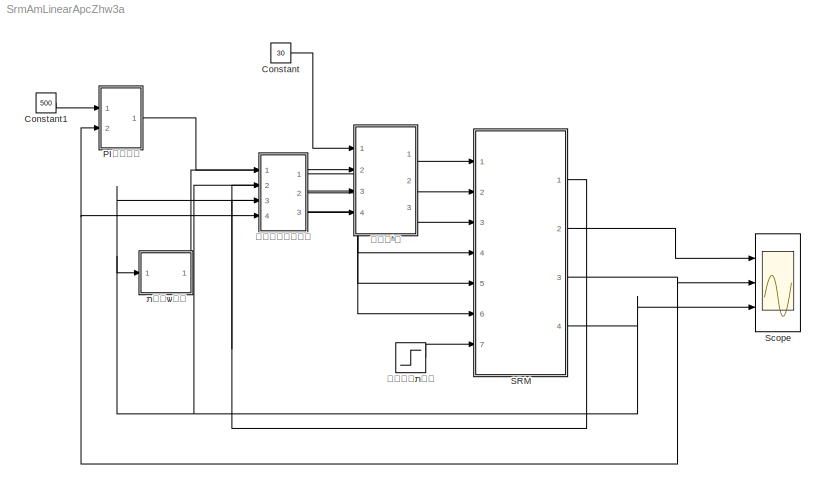
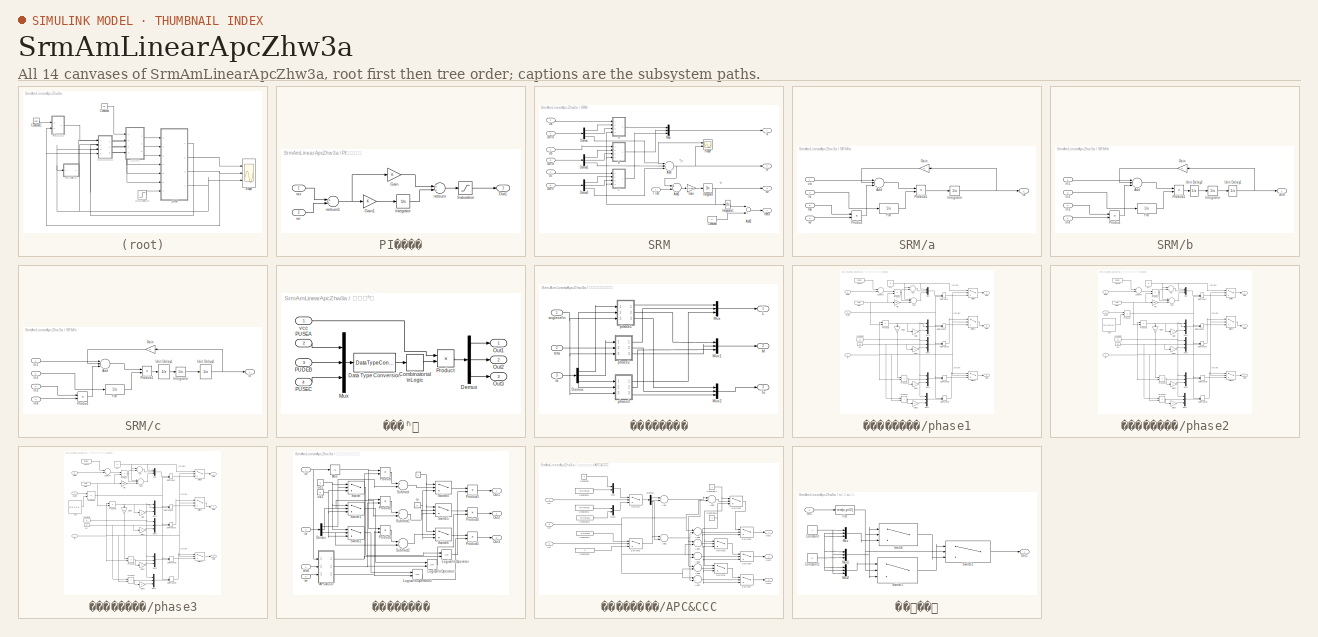
[diagram: thumbnail index - all 14 canvases of the model, root first then tree order]
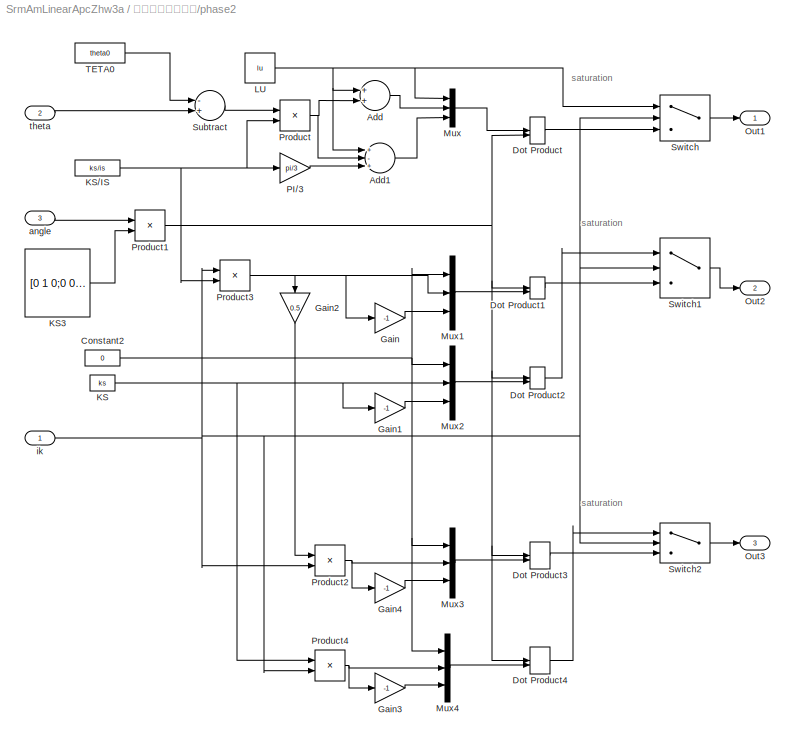
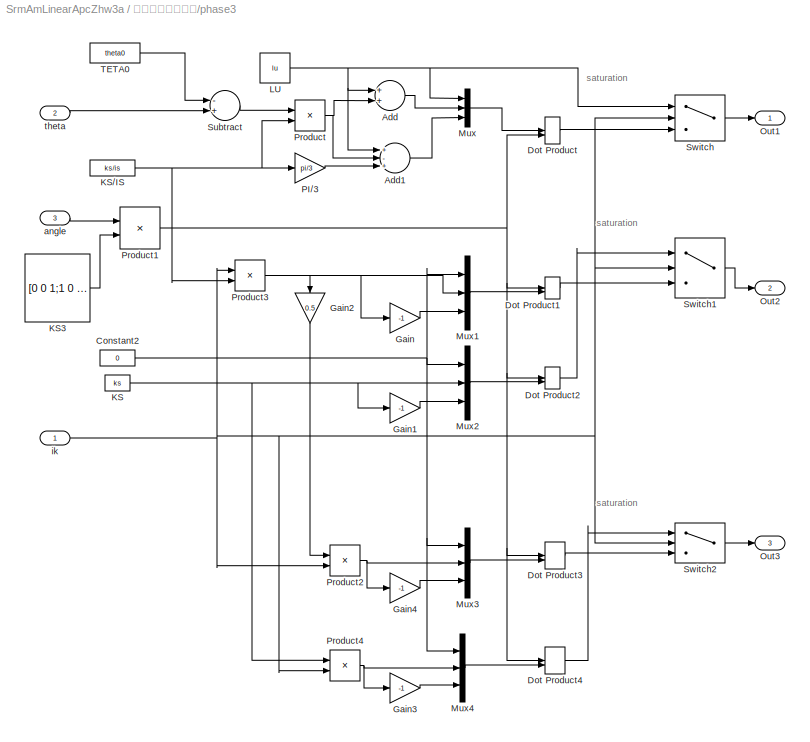
MODEL SrmAmLinearApcZhw3a
KIND model
CONFIG InitFcn = theta0=30*2*pi/360;\nks=2.44;\nis=2;\nlu=0.016;\nrs=1.5\n
BLOCK [Constant] Constant
  SID = 178
  Value = 30
BLOCK [Constant] Constant1
  SID = 548
  Value = 500
BLOCK [SubSystem] PI¿ØÖÆ
  FunctionWithSeparateData = off
  MaskHideContents = off
  MinAlgLoopOccurrences = off
  Opaque = off
  Ports = [2, 1]
  PropExecContextOutsideSubsystem = off
  RTWSystemCode = Auto
  RequestExecContextInheritance = off
  SID = 76
BLOCK [Gain] PI¿ØÖÆ/Gain
  OutDataTypeStr = Inherit: Inherit via internal rule
  ParamDataTypeStr = Inherit: Inherit via internal rule
  SID = 81
  SaturateOnIntegerOverflow = off
BLOCK [Gain] PI¿ØÖÆ/Gain1
  OutDataTypeStr = Inherit: Inherit via internal rule
  ParamDataTypeStr = Inherit: Inherit via internal rule
  SID = 82
  SaturateOnIntegerOverflow = off
BLOCK [Integrator] PI¿ØÖÆ/Integrator
  Ports = [1, 1]
  SID = 83
BLOCK [Outport] PI¿ØÖÆ/Out1
  IconDisplay = Port number
  SID = 80
BLOCK [Saturate] PI¿ØÖÆ/Saturation
  InputPortMap = u0
  Ports = [1, 1]
  SID = 85
BLOCK [Sum] PI¿ØÖÆ/netsum
  Inputs = 2
  Ports = [2, 1]
  SID = 84
BLOCK [Sum] PI¿ØÖÆ/netsum1
  Inputs = +-
  Ports = [2, 1]
  SID = 87
BLOCK [Inport] PI¿ØÖÆ/wr
  IconDisplay = Port number
  Port = 2
  SID = 79
BLOCK [Inport] PI¿ØÖÆ/wx
  IconDisplay = Port number
  SID = 78
BLOCK [SubSystem] SRM
  FunctionWithSeparateData = off
  MaskHideContents = off
  MinAlgLoopOccurrences = off
  Opaque = off
  Ports = [7, 4]
  PropExecContextOutsideSubsystem = off
  RTWSystemCode = Auto
  RequestExecContextInheritance = off
  SID = 2
BLOCK [Sum] SRM/Add
  InputSameDT = off
  Inputs = +++
  OutDataTypeStr = Inherit: Inherit via internal rule
  Ports = [3, 1]
  SID = 13
  SaturateOnIntegerOverflow = off
BLOCK [Sum] SRM/Add1
  InputSameDT = off
  Inputs = +-
  OutDataTypeStr = Inherit: Inherit via internal rule
  Ports = [2, 1]
  SID = 14
  SaturateOnIntegerOverflow = off
BLOCK [Sum] SRM/Add2
  InputSameDT = off
  OutDataTypeStr = Inherit: Inherit via internal rule
  Ports = [2, 1]
  SID = 15
  SaturateOnIntegerOverflow = off
BLOCK [Constant] SRM/Constant
  SID = 16
  Value = 0
BLOCK [Demux] SRM/Demux
  DisplayOption = bar
  Outputs = 3
  Ports = [1, 3]
  SID = 17
BLOCK [Demux] SRM/Demux1
  DisplayOption = bar
  Outputs = 3
  Ports = [1, 3]
  SID = 18
BLOCK [Demux] SRM/Demux2
  DisplayOption = bar
  Outputs = 3
  Ports = [1, 3]
  SID = 19
BLOCK [Gain] SRM/Gain
  Gain = 1/0.002
  OutDataTypeStr = Inherit: Inherit via internal rule
  ParamDataTypeStr = Inherit: Inherit via internal rule
  SID = 20
  SaturateOnIntegerOverflow = off
BLOCK [Integrator] SRM/Integrator
  Ports = [1, 1]
  SID = 22
BLOCK [Integrator] SRM/Integrator1
  Ports = [1, 1]
  SID = 23
BLOCK [Inport] SRM/LMTa
  IconDisplay = Port number
  Port = 4
  SID = 9
BLOCK [Inport] SRM/LMTb
  IconDisplay = Port number
  Port = 5
  SID = 10
BLOCK [Inport] SRM/LMTc
  IconDisplay = Port number
  Port = 6
  SID = 11
BLOCK [Mux] SRM/Mux
  DisplayOption = bar
  Inputs = 3
  Ports = [3, 1]
  SID = 24
BLOCK [Scope] SRM/Scope
  DataFormat = StructureWithTime
  Floating = off
  NumInputPorts = 2
  Ports = [2]
  SID = 25
  SampleTime = 0
  ShowLegends = off
  YMax = 5~5
  YMin = -5~-5
BLOCK [Inport] SRM/T-lod
  IconDisplay = Port number
  Port = 7
  SID = 12
BLOCK [Inport] SRM/Ua
  IconDisplay = Port number
  SID = 6
BLOCK [Inport] SRM/Ub
  IconDisplay = Port number
  Port = 2
  SID = 7
BLOCK [Inport] SRM/Uc
  IconDisplay = Port number
  Port = 3
  SID = 8
BLOCK [SubSystem] SRM/a
  FunctionWithSeparateData = off
  MaskHideContents = off
  MinAlgLoopOccurrences = off
  Opaque = off
  Ports = [4, 1]
  PropExecContextOutsideSubsystem = off
  RTWSystemCode = Auto
  RequestExecContextInheritance = off
  SID = 26
BLOCK [Sum] SRM/a/Add
  InputSameDT = off
  Inputs = +--
  OutDataTypeStr = Inherit: Inherit via internal rule
  Ports = [3, 1]
  SID = 31
  SaturateOnIntegerOverflow = off
BLOCK [Fcn] SRM/a/Fcn
  Expr = 1/u
  SID = 32
BLOCK [Gain] SRM/a/Gain
  Gain = rs
  OutDataTypeStr = Inherit: Inherit via internal rule
  ParamDataTypeStr = Inherit: Inherit via internal rule
  SID = 33
  SaturateOnIntegerOverflow = off
BLOCK [Integrator] SRM/a/Integrator
  Ports = [1, 1]
  SID = 34
BLOCK [Product] SRM/a/Product
  InputSameDT = off
  OutDataTypeStr = Inherit: Inherit via internal rule
  Ports = [2, 1]
  RndMeth = Floor
  SID = 35
  SaturateOnIntegerOverflow = off
BLOCK [Product] SRM/a/Product1
  InputSameDT = off
  OutDataTypeStr = Inherit: Inherit via internal rule
  Ports = [2, 1]
  RndMeth = Floor
  SID = 36
  SaturateOnIntegerOverflow = off
BLOCK [Outport] SRM/a/ia
  IconDisplay = Port number
  SID = 37
BLOCK [Inport] SRM/a/la
  IconDisplay = Port number
  Port = 2
  SID = 28
BLOCK [Inport] SRM/a/ma
  IconDisplay = Port number
  Port = 3
  SID = 29
BLOCK [Inport] SRM/a/ua
  IconDisplay = Port number
  SID = 27
BLOCK [Inport] SRM/a/wr
  IconDisplay = Port number
  Port = 4
  SID = 30
BLOCK [SubSystem] SRM/b
  FunctionWithSeparateData = off
  MaskHideContents = off
  MinAlgLoopOccurrences = off
  Opaque = off
  Ports = [4, 1]
  PropExecContextOutsideSubsystem = off
  RTWSystemCode = Auto
  RequestExecContextInheritance = off
  SID = 38
BLOCK [Sum] SRM/b/Add
  InputSameDT = off
  Inputs = +--
  OutDataTypeStr = Inherit: Inherit via internal rule
  Ports = [3, 1]
  SID = 43
  SaturateOnIntegerOverflow = off
BLOCK [Fcn] SRM/b/Fcn
  Expr = 1/u
  SID = 44
BLOCK [Gain] SRM/b/Gain
  Gain = rs
  OutDataTypeStr = Inherit: Inherit via internal rule
  ParamDataTypeStr = Inherit: Inherit via internal rule
  SID = 45
  SaturateOnIntegerOverflow = off
BLOCK [Inport] SRM/b/In1
  IconDisplay = Port number
  SID = 39
BLOCK [Inport] SRM/b/In2
  IconDisplay = Port number
  Port = 2
  SID = 40
BLOCK [Inport] SRM/b/In3
  IconDisplay = Port number
  Port = 3
  SID = 41
BLOCK [Inport] SRM/b/In4
  IconDisplay = Port number
  Port = 4
  SID = 42
BLOCK [Integrator] SRM/b/Integrator
  Ports = [1, 1]
  SID = 46
BLOCK [Product] SRM/b/Product
  InputSameDT = off
  OutDataTypeStr = Inherit: Inherit via internal rule
  Ports = [2, 1]
  RndMeth = Floor
  SID = 47
  SaturateOnIntegerOverflow = off
BLOCK [Product] SRM/b/Product1
  InputSameDT = off
  OutDataTypeStr = Inherit: Inherit via internal rule
  Ports = [2, 1]
  RndMeth = Floor
  SID = 48
  SaturateOnIntegerOverflow = off
BLOCK [UnitDelay] SRM/b/Unit Delay1
  SID = 547
  SampleTime = -1
BLOCK [UnitDelay] SRM/b/Unit Delay2
  SID = 545
  SampleTime = -1
BLOCK [Outport] SRM/b/ib\n
  IconDisplay = Port number
  SID = 49
BLOCK [SubSystem] SRM/c
  FunctionWithSeparateData = off
  MaskHideContents = off
  MinAlgLoopOccurrences = off
  Opaque = off
  Ports = [4, 1]
  PropExecContextOutsideSubsystem = off
  RTWSystemCode = Auto
  RequestExecContextInheritance = off
  SID = 50
BLOCK [Sum] SRM/c/Add
  InputSameDT = off
  Inputs = +--
  OutDataTypeStr = Inherit: Inherit via internal rule
  Ports = [3, 1]
  SID = 55
  SaturateOnIntegerOverflow = off
BLOCK [Fcn] SRM/c/Fcn
  Expr = 1/u
  SID = 56
BLOCK [Gain] SRM/c/Gain
  Gain = rs
  OutDataTypeStr = Inherit: Inherit via internal rule
  ParamDataTypeStr = Inherit: Inherit via internal rule
  SID = 57
  SaturateOnIntegerOverflow = off
BLOCK [Inport] SRM/c/In1
  IconDisplay = Port number
  SID = 51
BLOCK [Inport] SRM/c/In2
  IconDisplay = Port number
  Port = 2
  SID = 52
BLOCK [Inport] SRM/c/In3
  IconDisplay = Port number
  Port = 3
  SID = 53
BLOCK [Inport] SRM/c/In4
  IconDisplay = Port number
  Port = 4
  SID = 54
BLOCK [Integrator] SRM/c/Integrator
  InitialCondition = 1e-5
  Ports = [1, 1]
  SID = 58
BLOCK [Product] SRM/c/Product
  InputSameDT = off
  OutDataTypeStr = Inherit: Inherit via internal rule
  Ports = [2, 1]
  RndMeth = Floor
  SID = 59
  SaturateOnIntegerOverflow = off
BLOCK [Product] SRM/c/Product1
  InputSameDT = off
  OutDataTypeStr = Inherit: Inherit via internal rule
  Ports = [2, 1]
  RndMeth = Floor
  SID = 60
  SaturateOnIntegerOverflow = off
BLOCK [UnitDelay] SRM/c/Unit Delay1
  SID = 546
  SampleTime = -1
BLOCK [UnitDelay] SRM/c/Unit Delay2
  SID = 544
  SampleTime = -1
BLOCK [Outport] SRM/c/ic
  IconDisplay = Port number
  SID = 61
BLOCK [Outport] SRM/ik
  IconDisplay = Port number
  SID = 62
BLOCK [Outport] SRM/te
  IconDisplay = Port number
  Port = 2
  SID = 63
BLOCK [Outport] SRM/theta
  IconDisplay = Port number
  Port = 4
  SID = 65
BLOCK [Outport] SRM/wr
  IconDisplay = Port number
  Port = 3
  SID = 64
BLOCK [Scope] Scope
  DataFormat = StructureWithTime
  Floating = off
  NumInputPorts = 3
  Ports = [3]
  SID = 202
  SampleTime = 0
  SaveName = ScopeData1
  ShowLegends = off
  YMax = 5~5~5
  YMin = -5~-5~-5
BLOCK [SubSystem] 参数计算
  FunctionWithSeparateData = off
  MaskHideContents = off
  MinAlgLoopOccurrences = off
  Opaque = off
  Ports = [3, 3]
  PropExecContextOutsideSubsystem = off
  RTWSystemCode = Auto
  RequestExecContextInheritance = off
  SID = 194
BLOCK [Demux] 参数计算/Demux
  DisplayOption = bar
  Outputs = 3
  Ports = [1, 3]
  SID = 228
BLOCK [Outport] 参数计算/L
  IconDisplay = Port number
  SID = 197
BLOCK [Outport] 参数计算/M
  IconDisplay = Port number
  Port = 2
  SID = 199
BLOCK [Mux] 参数计算/Mux
  DisplayOption = bar
  Inputs = 3
  Ports = [3, 1]
  SID = 229
BLOCK [Mux] 参数计算/Mux1
  DisplayOption = bar
  Inputs = 3
  Ports = [3, 1]
  SID = 230
BLOCK [Mux] 参数计算/Mux2
  DisplayOption = bar
  Inputs = 3
  Ports = [3, 1]
  SID = 231
BLOCK [Outport] 参数计算/Te
  IconDisplay = Port number
  Port = 3
  SID = 200
BLOCK [Inport] 参数计算/anglesel\n
  IconDisplay = Port number
  SID = 195
BLOCK [Inport] 参数计算/ik
  IconDisplay = Port number
  Port = 3
  SID = 198
BLOCK [SubSystem] 参数计算/phase1
  FunctionWithSeparateData = off
  MaskHideContents = off
  MinAlgLoopOccurrences = off
  Opaque = off
  Ports = [3, 3]
  PropExecContextOutsideSubsystem = off
  RTWSystemCode = Auto
  RequestExecContextInheritance = off
  SID = 206
BLOCK [Sum] 参数计算/phase1/Add
  InputSameDT = off
  OutDataTypeStr = Inherit: Inherit via internal rule
  Ports = [2, 1]
  SID = 234
  SaturateOnIntegerOverflow = off
BLOCK [Sum] 参数计算/phase1/Add1
  InputSameDT = off
  Inputs = +-+
  OutDataTypeStr = Inherit: Inherit via internal rule
  Ports = [3, 1]
  SID = 235
  SaturateOnIntegerOverflow = off
BLOCK [Constant] 参数计算/phase1/Constant2
  SID = 258
  Value = 0
BLOCK [DotProduct] 参数计算/phase1/Dot Product
  OutDataTypeStr = Inherit: Inherit via internal rule
  SID = 241
BLOCK [DotProduct] 参数计算/phase1/Dot Product1
  OutDataTypeStr = Inherit: Inherit via internal rule
  SID = 242
BLOCK [DotProduct] 参数计算/phase1/Dot Product2
  OutDataTypeStr = Inherit: Inherit via internal rule
  SID = 243
BLOCK [DotProduct] 参数计算/phase1/Dot Product3
  OutDataTypeStr = Inherit: Inherit via internal rule
  SID = 244
BLOCK [DotProduct] 参数计算/phase1/Dot Product4
  OutDataTypeStr = Inherit: Inherit via internal rule
  SID = 245
BLOCK [Gain] 参数计算/phase1/Gain
  Gain = -1
  OutDataTypeStr = Inherit: Inherit via internal rule
  ParamDataTypeStr = Inherit: Inherit via internal rule
  SID = 251
  SaturateOnIntegerOverflow = off
BLOCK [Gain] 参数计算/phase1/Gain1
  Gain = -1
  OutDataTypeStr = Inherit: Inherit via internal rule
  ParamDataTypeStr = Inherit: Inherit via internal rule
  SID = 451
  SaturateOnIntegerOverflow = off
BLOCK [Gain] 参数计算/phase1/Gain2
  Gain = 0.5
  OutDataTypeStr = Inherit: Inherit via internal rule
  ParamDataTypeStr = Inherit: Inherit via internal rule
  SID = 253
  SaturateOnIntegerOverflow = off
BLOCK [Gain] 参数计算/phase1/Gain3
  Gain = -1
  OutDataTypeStr = Inherit: Inherit via internal rule
  ParamDataTypeStr = Inherit: Inherit via internal rule
  SID = 254
  SaturateOnIntegerOverflow = off
BLOCK [Gain] 参数计算/phase1/Gain4
  Gain = -1
  OutDataTypeStr = Inherit: Inherit via internal rule
  ParamDataTypeStr = Inherit: Inherit via internal rule
  SID = 255
  SaturateOnIntegerOverflow = off
BLOCK [Constant] 参数计算/phase1/KS
  SID = 259
  Value = ks
BLOCK [Constant] 参数计算/phase1/KS//IS
  SID = 257
  Value = ks/is
BLOCK [Constant] 参数计算/phase1/LU
  SID = 261
  Value = lu
BLOCK [Mux] 参数计算/phase1/Mux
  DisplayOption = bar
  Inputs = 3
  Ports = [3, 1]
  SID = 236
BLOCK [Mux] 参数计算/phase1/Mux1
  DisplayOption = bar
  Inputs = 3
  Ports = [3, 1]
  SID = 237
BLOCK [Mux] 参数计算/phase1/Mux2
  DisplayOption = bar
  Inputs = 3
  Ports = [3, 1]
  SID = 238
BLOCK [Mux] 参数计算/phase1/Mux3
  DisplayOption = bar
  Inputs = 3
  Ports = [3, 1]
  SID = 239
BLOCK [Mux] 参数计算/phase1/Mux4
  DisplayOption = bar
  Inputs = 3
  Ports = [3, 1]
  SID = 240
BLOCK [Outport] 参数计算/phase1/Out1
  IconDisplay = Port number
  SID = 207
BLOCK [Outport] 参数计算/phase1/Out2
  IconDisplay = Port number
  Port = 2
  SID = 211
BLOCK [Outport] 参数计算/phase1/Out3
  IconDisplay = Port number
  Port = 3
  SID = 212
BLOCK [Gain] 参数计算/phase1/PI//3
  Gain = pi/3
  OutDataTypeStr = Inherit: Inherit via internal rule
  ParamDataTypeStr = Inherit: Inherit via internal rule
  SID = 262
  SaturateOnIntegerOverflow = off
BLOCK [Product] 参数计算/phase1/Product
  InputSameDT = off
  OutDataTypeStr = Inherit: Inherit via internal rule
  Ports = [2, 1]
  RndMeth = Floor
  SID = 233
  SaturateOnIntegerOverflow = off
BLOCK [Product] 参数计算/phase1/Product2
  InputSameDT = off
  OutDataTypeStr = Inherit: Inherit via internal rule
  Ports = [2, 1]
  RndMeth = Floor
  SID = 250
  SaturateOnIntegerOverflow = off
BLOCK [Product] 参数计算/phase1/Product3
  InputSameDT = off
  OutDataTypeStr = Inherit: Inherit via internal rule
  Ports = [2, 1]
  RndMeth = Floor
  SID = 263
  SaturateOnIntegerOverflow = off
BLOCK [Product] 参数计算/phase1/Product4
  InputSameDT = off
  OutDataTypeStr = Inherit: Inherit via internal rule
  Ports = [2, 1]
  RndMeth = Floor
  SID = 264
  SaturateOnIntegerOverflow = off
BLOCK [Sum] 参数计算/phase1/Subtract
  InputSameDT = off
  Inputs = -+
  OutDataTypeStr = Inherit: Inherit via internal rule
  Ports = [2, 1]
  SID = 232
  SaturateOnIntegerOverflow = off
BLOCK [Switch] 参数计算/phase1/Switch
  InputSameDT = off
  SID = 246
  SaturateOnIntegerOverflow = off
  Threshold = is
BLOCK [Switch] 参数计算/phase1/Switch1
  InputSameDT = off
  SID = 247
  SaturateOnIntegerOverflow = off
  Threshold = is
BLOCK [Switch] 参数计算/phase1/Switch2
  InputSameDT = off
  SID = 248
  SaturateOnIntegerOverflow = off
  Threshold = is
BLOCK [Constant] 参数计算/phase1/TETA0
  SID = 256
  Value = theta0
BLOCK [Inport] 参数计算/phase1/angle
  IconDisplay = Port number
  Port = 3
  SID = 210
BLOCK [Inport] 参数计算/phase1/ik
  IconDisplay = Port number
  SID = 208
BLOCK [Inport] 参数计算/phase1/theta
  IconDisplay = Port number
  Port = 2
  SID = 209
BLOCK [SubSystem] 参数计算/phase2
  FunctionWithSeparateData = off
  MaskHideContents = off
  MinAlgLoopOccurrences = off
  Opaque = off
  Ports = [3, 3]
  PropExecContextOutsideSubsystem = off
  RTWSystemCode = Auto
  RequestExecContextInheritance = off
  SID = 455
BLOCK [Sum] 参数计算/phase2/Add
  InputSameDT = off
  OutDataTypeStr = Inherit: Inherit via internal rule
  Ports = [2, 1]
  SID = 459
  SaturateOnIntegerOverflow = off
BLOCK [Sum] 参数计算/phase2/Add1
  InputSameDT = off
  Inputs = +-+
  OutDataTypeStr = Inherit: Inherit via internal rule
  Ports = [3, 1]
  SID = 460
  SaturateOnIntegerOverflow = off
BLOCK [Constant] 参数计算/phase2/Constant2
  SID = 461
  Value = 0
BLOCK [DotProduct] 参数计算/phase2/Dot Product
  OutDataTypeStr = Inherit: Inherit via internal rule
  SID = 462
BLOCK [DotProduct] 参数计算/phase2/Dot Product1
  OutDataTypeStr = Inherit: Inherit via internal rule
  SID = 463
BLOCK [DotProduct] 参数计算/phase2/Dot Product2
  OutDataTypeStr = Inherit: Inherit via internal rule
  SID = 464
BLOCK [DotProduct] 参数计算/phase2/Dot Product3
  OutDataTypeStr = Inherit: Inherit via internal rule
  SID = 465
BLOCK [DotProduct] 参数计算/phase2/Dot Product4
  OutDataTypeStr = Inherit: Inherit via internal rule
  SID = 466
BLOCK [Gain] 参数计算/phase2/Gain
  Gain = -1
  OutDataTypeStr = Inherit: Inherit via internal rule
  ParamDataTypeStr = Inherit: Inherit via internal rule
  SID = 467
  SaturateOnIntegerOverflow = off
BLOCK [Gain] 参数计算/phase2/Gain1
  Gain = -1
  OutDataTypeStr = Inherit: Inherit via internal rule
  ParamDataTypeStr = Inherit: Inherit via internal rule
  SID = 468
  SaturateOnIntegerOverflow = off
BLOCK [Gain] 参数计算/phase2/Gain2
  Gain = 0.5
  OutDataTypeStr = Inherit: Inherit via internal rule
  ParamDataTypeStr = Inherit: Inherit via internal rule
  SID = 469
  SaturateOnIntegerOverflow = off
BLOCK [Gain] 参数计算/phase2/Gain3
  Gain = -1
  OutDataTypeStr = Inherit: Inherit via internal rule
  ParamDataTypeStr = Inherit: Inherit via internal rule
  SID = 470
  SaturateOnIntegerOverflow = off
BLOCK [Gain] 参数计算/phase2/Gain4
  Gain = -1
  OutDataTypeStr = Inherit: Inherit via internal rule
  ParamDataTypeStr = Inherit: Inherit via internal rule
  SID = 471
  SaturateOnIntegerOverflow = off
BLOCK [Constant] 参数计算/phase2/KS
  SID = 472
  Value = ks
BLOCK [Constant] 参数计算/phase2/KS//IS
  SID = 473
  Value = ks/is
BLOCK [Constant] 参数计算/phase2/KS3
  SID = 537
  Value = [0 1 0;0  0 1;1 0 0]'
  VectorParams1D = off
BLOCK [Constant] 参数计算/phase2/LU
  SID = 474
  Value = lu
BLOCK [Mux] 参数计算/phase2/Mux
  DisplayOption = bar
  Inputs = 3
  Ports = [3, 1]
  SID = 475
BLOCK [Mux] 参数计算/phase2/Mux1
  DisplayOption = bar
  Inputs = 3
  Ports = [3, 1]
  SID = 476
BLOCK [Mux] 参数计算/phase2/Mux2
  DisplayOption = bar
  Inputs = 3
  Ports = [3, 1]
  SID = 477
BLOCK [Mux] 参数计算/phase2/Mux3
  DisplayOption = bar
  Inputs = 3
  Ports = [3, 1]
  SID = 478
BLOCK [Mux] 参数计算/phase2/Mux4
  DisplayOption = bar
  Inputs = 3
  Ports = [3, 1]
  SID = 479
BLOCK [Outport] 参数计算/phase2/Out1
  IconDisplay = Port number
  SID = 490
BLOCK [Outport] 参数计算/phase2/Out2
  IconDisplay = Port number
  Port = 2
  SID = 491
BLOCK [Outport] 参数计算/phase2/Out3
  IconDisplay = Port number
  Port = 3
  SID = 492
BLOCK [Gain] 参数计算/phase2/PI//3
  Gain = pi/3
  OutDataTypeStr = Inherit: Inherit via internal rule
  ParamDataTypeStr = Inherit: Inherit via internal rule
  SID = 480
  SaturateOnIntegerOverflow = off
BLOCK [Product] 参数计算/phase2/Product
  InputSameDT = off
  OutDataTypeStr = Inherit: Inherit via internal rule
  Ports = [2, 1]
  RndMeth = Floor
  SID = 481
  SaturateOnIntegerOverflow = off
BLOCK [Product] 参数计算/phase2/Product1
  InputSameDT = off
  Multiplication = Matrix(*)
  OutDataTypeStr = Inherit: Inherit via internal rule
  Ports = [2, 1]
  RndMeth = Floor
  SID = 538
  SaturateOnIntegerOverflow = off
BLOCK [Product] 参数计算/phase2/Product2
  InputSameDT = off
  OutDataTypeStr = Inherit: Inherit via internal rule
  Ports = [2, 1]
  RndMeth = Floor
  SID = 482
  SaturateOnIntegerOverflow = off
BLOCK [Product] 参数计算/phase2/Product3
  InputSameDT = off
  OutDataTypeStr = Inherit: Inherit via internal rule
  Ports = [2, 1]
  RndMeth = Floor
  SID = 483
  SaturateOnIntegerOverflow = off
BLOCK [Product] 参数计算/phase2/Product4
  InputSameDT = off
  OutDataTypeStr = Inherit: Inherit via internal rule
  Ports = [2, 1]
  RndMeth = Floor
  SID = 484
  SaturateOnIntegerOverflow = off
BLOCK [Sum] 参数计算/phase2/Subtract
  InputSameDT = off
  Inputs = -+
  OutDataTypeStr = Inherit: Inherit via internal rule
  Ports = [2, 1]
  SID = 485
  SaturateOnIntegerOverflow = off
BLOCK [Switch] 参数计算/phase2/Switch
  InputSameDT = off
  SID = 486
  SaturateOnIntegerOverflow = off
  Threshold = is
BLOCK [Switch] 参数计算/phase2/Switch1
  InputSameDT = off
  SID = 487
  SaturateOnIntegerOverflow = off
  Threshold = is
BLOCK [Switch] 参数计算/phase2/Switch2
  InputSameDT = off
  SID = 488
  SaturateOnIntegerOverflow = off
  Threshold = is
BLOCK [Constant] 参数计算/phase2/TETA0
  SID = 489
  Value = theta0
BLOCK [Inport] 参数计算/phase2/angle
  IconDisplay = Port number
  Port = 3
  SID = 458
BLOCK [Inport] 参数计算/phase2/ik
  IconDisplay = Port number
  SID = 456
BLOCK [Inport] 参数计算/phase2/theta
  IconDisplay = Port number
  Port = 2
  SID = 457
BLOCK [SubSystem] 参数计算/phase3
  FunctionWithSeparateData = off
  MaskHideContents = off
  MinAlgLoopOccurrences = off
  Opaque = off
  Ports = [3, 3]
  PropExecContextOutsideSubsystem = off
  RTWSystemCode = Auto
  RequestExecContextInheritance = off
  SID = 496
BLOCK [Sum] 参数计算/phase3/Add
  InputSameDT = off
  OutDataTypeStr = Inherit: Inherit via internal rule
  Ports = [2, 1]
  SID = 500
  SaturateOnIntegerOverflow = off
BLOCK [Sum] 参数计算/phase3/Add1
  InputSameDT = off
  Inputs = +-+
  OutDataTypeStr = Inherit: Inherit via internal rule
  Ports = [3, 1]
  SID = 501
  SaturateOnIntegerOverflow = off
BLOCK [Constant] 参数计算/phase3/Constant2
  SID = 502
  Value = 0
BLOCK [DotProduct] 参数计算/phase3/Dot Product
  OutDataTypeStr = Inherit: Inherit via internal rule
  SID = 503
BLOCK [DotProduct] 参数计算/phase3/Dot Product1
  OutDataTypeStr = Inherit: Inherit via internal rule
  SID = 504
BLOCK [DotProduct] 参数计算/phase3/Dot Product2
  OutDataTypeStr = Inherit: Inherit via internal rule
  SID = 505
BLOCK [DotProduct] 参数计算/phase3/Dot Product3
  OutDataTypeStr = Inherit: Inherit via internal rule
  SID = 506
BLOCK [DotProduct] 参数计算/phase3/Dot Product4
  OutDataTypeStr = Inherit: Inherit via internal rule
  SID = 507
BLOCK [Gain] 参数计算/phase3/Gain
  Gain = -1
  OutDataTypeStr = Inherit: Inherit via internal rule
  ParamDataTypeStr = Inherit: Inherit via internal rule
  SID = 508
  SaturateOnIntegerOverflow = off
BLOCK [Gain] 参数计算/phase3/Gain1
  Gain = -1
  OutDataTypeStr = Inherit: Inherit via internal rule
  ParamDataTypeStr = Inherit: Inherit via internal rule
  SID = 509
  SaturateOnIntegerOverflow = off
BLOCK [Gain] 参数计算/phase3/Gain2
  Gain = 0.5
  OutDataTypeStr = Inherit: Inherit via internal rule
  ParamDataTypeStr = Inherit: Inherit via internal rule
  SID = 510
  SaturateOnIntegerOverflow = off
BLOCK [Gain] 参数计算/phase3/Gain3
  Gain = -1
  OutDataTypeStr = Inherit: Inherit via internal rule
  ParamDataTypeStr = Inherit: Inherit via internal rule
  SID = 511
  SaturateOnIntegerOverflow = off
BLOCK [Gain] 参数计算/phase3/Gain4
  Gain = -1
  OutDataTypeStr = Inherit: Inherit via internal rule
  ParamDataTypeStr = Inherit: Inherit via internal rule
  SID = 512
  SaturateOnIntegerOverflow = off
BLOCK [Constant] 参数计算/phase3/KS
  SID = 513
  Value = ks
BLOCK [Constant] 参数计算/phase3/KS//IS
  SID = 514
  Value = ks/is
BLOCK [Constant] 参数计算/phase3/KS3
  SID = 539
  Value = [0 0 1;1 0  0; 0 1 0]'
  VectorParams1D = off
BLOCK [Constant] 参数计算/phase3/LU
  SID = 515
  Value = lu
BLOCK [Mux] 参数计算/phase3/Mux
  DisplayOption = bar
  Inputs = 3
  Ports = [3, 1]
  SID = 516
BLOCK [Mux] 参数计算/phase3/Mux1
  DisplayOption = bar
  Inputs = 3
  Ports = [3, 1]
  SID = 517
BLOCK [Mux] 参数计算/phase3/Mux2
  DisplayOption = bar
  Inputs = 3
  Ports = [3, 1]
  SID = 518
BLOCK [Mux] 参数计算/phase3/Mux3
  DisplayOption = bar
  Inputs = 3
  Ports = [3, 1]
  SID = 519
BLOCK [Mux] 参数计算/phase3/Mux4
  DisplayOption = bar
  Inputs = 3
  Ports = [3, 1]
  SID = 520
BLOCK [Outport] 参数计算/phase3/Out1
  IconDisplay = Port number
  SID = 531
BLOCK [Outport] 参数计算/phase3/Out2
  IconDisplay = Port number
  Port = 2
  SID = 532
BLOCK [Outport] 参数计算/phase3/Out3
  IconDisplay = Port number
  Port = 3
  SID = 533
BLOCK [Gain] 参数计算/phase3/PI//3
  Gain = pi/3
  OutDataTypeStr = Inherit: Inherit via internal rule
  ParamDataTypeStr = Inherit: Inherit via internal rule
  SID = 521
  SaturateOnIntegerOverflow = off
BLOCK [Product] 参数计算/phase3/Product
  InputSameDT = off
  OutDataTypeStr = Inherit: Inherit via internal rule
  Ports = [2, 1]
  RndMeth = Floor
  SID = 522
  SaturateOnIntegerOverflow = off
BLOCK [Product] 参数计算/phase3/Product1
  InputSameDT = off
  Multiplication = Matrix(*)
  OutDataTypeStr = Inherit: Inherit via internal rule
  Ports = [2, 1]
  RndMeth = Floor
  SID = 540
  SaturateOnIntegerOverflow = off
BLOCK [Product] 参数计算/phase3/Product2
  InputSameDT = off
  OutDataTypeStr = Inherit: Inherit via internal rule
  Ports = [2, 1]
  RndMeth = Floor
  SID = 523
  SaturateOnIntegerOverflow = off
BLOCK [Product] 参数计算/phase3/Product3
  InputSameDT = off
  OutDataTypeStr = Inherit: Inherit via internal rule
  Ports = [2, 1]
  RndMeth = Floor
  SID = 524
  SaturateOnIntegerOverflow = off
BLOCK [Product] 参数计算/phase3/Product4
  InputSameDT = off
  OutDataTypeStr = Inherit: Inherit via internal rule
  Ports = [2, 1]
  RndMeth = Floor
  SID = 525
  SaturateOnIntegerOverflow = off
BLOCK [Sum] 参数计算/phase3/Subtract
  InputSameDT = off
  Inputs = -+
  OutDataTypeStr = Inherit: Inherit via internal rule
  Ports = [2, 1]
  SID = 526
  SaturateOnIntegerOverflow = off
BLOCK [Switch] 参数计算/phase3/Switch
  InputSameDT = off
  SID = 527
  SaturateOnIntegerOverflow = off
  Threshold = is
BLOCK [Switch] 参数计算/phase3/Switch1
  InputSameDT = off
  SID = 528
  SaturateOnIntegerOverflow = off
  Threshold = is
BLOCK [Switch] 参数计算/phase3/Switch2
  InputSameDT = off
  SID = 529
  SaturateOnIntegerOverflow = off
  Threshold = is
BLOCK [Constant] 参数计算/phase3/TETA0
  SID = 530
  Value = theta0
BLOCK [Inport] 参数计算/phase3/angle
  IconDisplay = Port number
  Port = 3
  SID = 499
BLOCK [Inport] 参数计算/phase3/ik
  IconDisplay = Port number
  SID = 497
BLOCK [Inport] 参数计算/phase3/theta
  IconDisplay = Port number
  Port = 2
  SID = 498
BLOCK [Inport] 参数计算/teta
  IconDisplay = Port number
  Port = 2
  SID = 196
BLOCK [SubSystem] 电流控制
  FunctionWithSeparateData = off
  MaskHideContents = off
  MinAlgLoopOccurrences = off
  Opaque = off
  Ports = [4, 3]
  PropExecContextOutsideSubsystem = off
  RTWSystemCode = Auto
  RequestExecContextInheritance = off
  SID = 89
BLOCK [Constant] 电流控制/ 
  SID = 125
BLOCK [Constant] 电流控制/      \n
  SID = 126
  Value = 0
BLOCK [SubSystem] 电流控制/APC&CCC
  FunctionWithSeparateData = off
  MaskHideContents = off
  MinAlgLoopOccurrences = off
  Opaque = off
  Ports = [3, 3]
  PropExecContextOutsideSubsystem = off
  RTWSystemCode = Auto
  RequestExecContextInheritance = off
  SID = 103
BLOCK [Sum] 电流控制/APC&CCC/Add
  InputSameDT = off
  OutDataTypeStr = Inherit: Inherit via internal rule
  Ports = [2, 1]
  SID = 141
  SaturateOnIntegerOverflow = off
BLOCK [Sum] 电流控制/APC&CCC/Add1
  InputSameDT = off
  OutDataTypeStr = Inherit: Inherit via internal rule
  Ports = [2, 1]
  SID = 142
  SaturateOnIntegerOverflow = off
BLOCK [Sum] 电流控制/APC&CCC/Add2
  InputSameDT = off
  Inputs = -+
  OutDataTypeStr = Inherit: Inherit via internal rule
  Ports = [2, 1]
  SID = 154
  SaturateOnIntegerOverflow = off
BLOCK [Sum] 电流控制/APC&CCC/Add3
  InputSameDT = off
  Inputs = -+
  OutDataTypeStr = Inherit: Inherit via internal rule
  Ports = [2, 1]
  SID = 155
  SaturateOnIntegerOverflow = off
BLOCK [Sum] 电流控制/APC&CCC/Add4
  InputSameDT = off
  Inputs = -+
  OutDataTypeStr = Inherit: Inherit via internal rule
  Ports = [2, 1]
  SID = 156
  SaturateOnIntegerOverflow = off
BLOCK [Sum] 电流控制/APC&CCC/Add5
  InputSameDT = off
  Inputs = -+
  OutDataTypeStr = Inherit: Inherit via internal rule
  Ports = [2, 1]
  SID = 157
  SaturateOnIntegerOverflow = off
BLOCK [Sum] 电流控制/APC&CCC/Add6
  InputSameDT = off
  Inputs = -+
  OutDataTypeStr = Inherit: Inherit via internal rule
  Ports = [2, 1]
  SID = 158
  SaturateOnIntegerOverflow = off
BLOCK [Sum] 电流控制/APC&CCC/Add7
  InputSameDT = off
  Inputs = -+
  OutDataTypeStr = Inherit: Inherit via internal rule
  Ports = [2, 1]
  SID = 159
  SaturateOnIntegerOverflow = off
BLOCK [Constant] 电流控制/APC&CCC/Constant
  SID = 133
  Value = 0
BLOCK [Constant] 电流控制/APC&CCC/Constant1
  SID = 134
  Value = 40*2*pi/360
BLOCK [Constant] 电流控制/APC&CCC/Constant2
  SID = 135
  Value = 45*2*pi/360
BLOCK [Constant] 电流控制/APC&CCC/Constant3
  SID = 136
  Value = 70*2*pi/360
BLOCK [Constant] 电流控制/APC&CCC/Constant4
  SID = 138
  Value = -5*2*pi/360
BLOCK [Constant] 电流控制/APC&CCC/Constant5
  SID = 139
  Value = 0
BLOCK [Constant] 电流控制/APC&CCC/Constant6
  SID = 161
  Value = 0
BLOCK [Constant] 电流控制/APC&CCC/Constant7
  SID = 162
BLOCK [Demux] 电流控制/APC&CCC/Demux
  DisplayOption = bar
  Outputs = 2
  Ports = [1, 2]
  SID = 140
BLOCK [Inport] 电流控制/APC&CCC/In1
  IconDisplay = Port number
  SID = 104
BLOCK [Inport] 电流控制/APC&CCC/In2
  IconDisplay = Port number
  Port = 2
  SID = 105
BLOCK [Inport] 电流控制/APC&CCC/In3
  IconDisplay = Port number
  Port = 3
  SID = 106
BLOCK [Mux] 电流控制/APC&CCC/Mux
  DisplayOption = bar
  Inputs = 2
  Ports = [2, 1]
  SID = 130
BLOCK [Mux] 电流控制/APC&CCC/Mux1
  DisplayOption = bar
  Inputs = 2
  Ports = [2, 1]
  SID = 131
BLOCK [Outport] 电流控制/APC&CCC/Out1
  IconDisplay = Port number
  SID = 107
BLOCK [Outport] 电流控制/APC&CCC/Out2
  IconDisplay = Port number
  Port = 2
  SID = 120
BLOCK [Outport] 电流控制/APC&CCC/Out3
  IconDisplay = Port number
  Port = 3
  SID = 121
BLOCK [Switch] 电流控制/APC&CCC/Switch
  InputSameDT = off
  SID = 132
  SaturateOnIntegerOverflow = off
BLOCK [Switch] 电流控制/APC&CCC/Switch1
  InputSameDT = off
  SID = 137
  SaturateOnIntegerOverflow = off
BLOCK [Switch] 电流控制/APC&CCC/Switch2
  InputSameDT = off
  SID = 147
  SaturateOnIntegerOverflow = off
BLOCK [Switch] 电流控制/APC&CCC/Switch3
  InputSameDT = off
  SID = 148
  SaturateOnIntegerOverflow = off
BLOCK [Switch] 电流控制/APC&CCC/Switch4
  InputSameDT = off
  SID = 149
  SaturateOnIntegerOverflow = off
BLOCK [Switch] 电流控制/APC&CCC/Switch5
  InputSameDT = off
  SID = 150
  SaturateOnIntegerOverflow = off
BLOCK [Switch] 电流控制/APC&CCC/Switch6
  InputSameDT = off
  SID = 151
  SaturateOnIntegerOverflow = off
BLOCK [Switch] 电流控制/APC&CCC/Switch7
  InputSameDT = off
  SID = 152
  SaturateOnIntegerOverflow = off
BLOCK [Abs] 电流控制/Abs
  SID = 95
  SaturateOnIntegerOverflow = off
BLOCK [Demux] 电流控制/Demux
  DisplayOption = bar
  Outputs = 3
  Ports = [1, 3]
  SID = 111
BLOCK [Logic] 电流控制/Logical\nOperator
  AllPortsSameDT = off
  Operator = OR
  OutDataTypeStr = boolean
  Ports = [2, 1]
  SID = 122
BLOCK [Logic] 电流控制/Logical\nOperator1
  AllPortsSameDT = off
  Operator = OR
  OutDataTypeStr = boolean
  Ports = [2, 1]
  SID = 123
BLOCK [Logic] 电流控制/Logical\nOperator2
  AllPortsSameDT = off
  Operator = OR
  OutDataTypeStr = boolean
  Ports = [2, 1]
  SID = 124
BLOCK [Outport] 电流控制/Out1
  IconDisplay = Port number
  SID = 108
BLOCK [Outport] 电流控制/Out2
  IconDisplay = Port number
  Port = 2
  SID = 109
BLOCK [Outport] 电流控制/Out3
  IconDisplay = Port number
  Port = 3
  SID = 110
BLOCK [Product] 电流控制/Product
  InputSameDT = off
  OutDataTypeStr = Inherit: Inherit via internal rule
  Ports = [2, 1]
  RndMeth = Floor
  SID = 96
  SaturateOnIntegerOverflow = off
BLOCK [Product] 电流控制/Product1
  InputSameDT = off
  OutDataTypeStr = Inherit: Inherit via internal rule
  Ports = [2, 1]
  RndMeth = Floor
  SID = 97
  SaturateOnIntegerOverflow = off
BLOCK [Product] 电流控制/Product2
  InputSameDT = off
  OutDataTypeStr = Inherit: Inherit via internal rule
  Ports = [2, 1]
  RndMeth = Floor
  SID = 98
  SaturateOnIntegerOverflow = off
BLOCK [Product] 电流控制/Product3
  InputSameDT = off
  OutDataTypeStr = Inherit: Inherit via internal rule
  Ports = [2, 1]
  RndMeth = Floor
  SID = 127
  SaturateOnIntegerOverflow = off
BLOCK [Product] 电流控制/Product4
  InputSameDT = off
  OutDataTypeStr = Inherit: Inherit via internal rule
  Ports = [2, 1]
  RndMeth = Floor
  SID = 128
  SaturateOnIntegerOverflow = off
BLOCK [Product] 电流控制/Product5
  InputSameDT = off
  OutDataTypeStr = Inherit: Inherit via internal rule
  Ports = [2, 1]
  RndMeth = Floor
  SID = 129
  SaturateOnIntegerOverflow = off
BLOCK [Sum] 电流控制/Subtract
  InputSameDT = off
  Inputs = +-
  OutDataTypeStr = Inherit: Inherit via internal rule
  Ports = [2, 1]
  SID = 114
  SaturateOnIntegerOverflow = off
BLOCK [Sum] 电流控制/Subtract1
  InputSameDT = off
  Inputs = +-
  OutDataTypeStr = Inherit: Inherit via internal rule
  Ports = [2, 1]
  SID = 118
  SaturateOnIntegerOverflow = off
BLOCK [Sum] 电流控制/Subtract2
  InputSameDT = off
  Inputs = +-
  OutDataTypeStr = Inherit: Inherit via internal rule
  Ports = [2, 1]
  SID = 119
  SaturateOnIntegerOverflow = off
BLOCK [Switch] 电流控制/Switch
  InputSameDT = off
  SID = 99
  SaturateOnIntegerOverflow = off
BLOCK [Switch] 电流控制/Switch1
  InputSameDT = off
  SID = 100
  SaturateOnIntegerOverflow = off
BLOCK [Switch] 电流控制/Switch2
  InputSameDT = off
  SID = 101
  SaturateOnIntegerOverflow = off
BLOCK [Switch] 电流控制/Switch4
  InputSameDT = off
  SID = 115
  SaturateOnIntegerOverflow = off
BLOCK [Switch] 电流控制/Switch5
  InputSameDT = off
  SID = 116
  SaturateOnIntegerOverflow = off
BLOCK [Switch] 电流控制/Switch6
  InputSameDT = off
  SID = 117
  SaturateOnIntegerOverflow = off
BLOCK [Inport] 电流控制/ik
  IconDisplay = Port number
  Port = 2
  SID = 92
BLOCK [Inport] 电流控制/io
  IconDisplay = Port number
  SID = 91
BLOCK [Inport] 电流控制/teta
  IconDisplay = Port number
  Port = 3
  SID = 93
BLOCK [Constant] 电流控制/ud1
  SID = 112
BLOCK [Constant] 电流控制/ud2
  SID = 113
  Value = 0
BLOCK [Inport] 电流控制/wr
  IconDisplay = Port number
  Port = 4
  SID = 94
BLOCK [Step] 负载转矩
  SID = 204
  SampleTime = 0
BLOCK [SubSystem] 功率变换
  FunctionWithSeparateData = off
  MaskHideContents = off
  MinAlgLoopOccurrences = off
  Opaque = off
  Ports = [4, 3]
  PropExecContextOutsideSubsystem = off
  RTWSystemCode = Auto
  RequestExecContextInheritance = off
  SID = 164
BLOCK [CombinatorialLogic] 功率变换/Combinatorial \nLogic
  SID = 174
  TruthTable = [0 0 0 ;0 0 1;0 1 0;0 1 1;1 0 0;1 0 1;1 1 0;1 1 1]
BLOCK [DataTypeConversion] 功率变换/Data Type Conversion
  OutDataTypeStr = boolean
  RndMeth = Floor
  SID = 450
  SaturateOnIntegerOverflow = off
BLOCK [Demux] 功率变换/Demux
  DisplayOption = bar
  Outputs = 3
  Ports = [1, 3]
  SID = 172
BLOCK [Mux] 功率变换/Mux
  DisplayOption = bar
  Inputs = 3
  Ports = [3, 1]
  SID = 173
BLOCK [Outport] 功率变换/Out1
  IconDisplay = Port number
  SID = 166
BLOCK [Outport] 功率变换/Out2
  IconDisplay = Port number
  Port = 2
  SID = 169
BLOCK [Outport] 功率变换/Out3
  IconDisplay = Port number
  Port = 3
  SID = 170
BLOCK [Inport] 功率变换/PUDEB
  IconDisplay = Port number
  Port = 3
  SID = 167
BLOCK [Inport] 功率变换/PUSEA
  IconDisplay = Port number
  Port = 2
  SID = 165
BLOCK [Inport] 功率变换/PUSEC
  IconDisplay = Port number
  Port = 4
  SID = 168
BLOCK [Product] 功率变换/Product
  InputSameDT = off
  OutDataTypeStr = Inherit: Inherit via internal rule
  Ports = [2, 1]
  RndMeth = Floor
  SID = 171
  SaturateOnIntegerOverflow = off
BLOCK [Inport] 功率变换/vcc
  IconDisplay = Port number
  SID = 177
BLOCK [SubSystem] 转角选择
  FunctionWithSeparateData = off
  MaskHideContents = off
  MinAlgLoopOccurrences = off
  Opaque = off
  Ports = [1, 1]
  PropExecContextOutsideSubsystem = off
  RTWSystemCode = Auto
  RequestExecContextInheritance = off
  SID = 180
BLOCK [Constant] 转角选择/Constant
  SID = 183
BLOCK [Constant] 转角选择/Constant1
  SID = 184
  Value = 0
BLOCK [Fcn] 转角选择/Fcn
  Expr = rem(u,pi/2)
  SID = 191
BLOCK [Inport] 转角选择/In1
  IconDisplay = Port number
  SID = 181
BLOCK [Mux] 转角选择/Mux
  DisplayOption = bar
  Inputs = 3
  Ports = [3, 1]
  SID = 185
BLOCK [Mux] 转角选择/Mux1
  DisplayOption = bar
  Inputs = 3
  Ports = [3, 1]
  SID = 186
BLOCK [Mux] 转角选择/Mux2
  DisplayOption = bar
  Inputs = 3
  Ports = [3, 1]
  SID = 187
BLOCK [Outport] 转角选择/Out1
  IconDisplay = Port number
  SID = 192
BLOCK [Switch] 转角选择/Switch
  InputSameDT = off
  SID = 188
  SaturateOnIntegerOverflow = off
  Threshold = pi/6
BLOCK [Switch] 转角选择/Switch1
  InputSameDT = off
  SID = 189
  SaturateOnIntegerOverflow = off
  Threshold = pi/3
BLOCK [Switch] 转角选择/Switch2
  InputSameDT = off
  SID = 190
  SaturateOnIntegerOverflow = off
  Threshold = pi/3
ANNOTATION SRM: Te
ANNOTATION SRM: w
ANNOTATION 参数计算/phase1: saturation
ANNOTATION 参数计算/phase2: saturation
ANNOTATION 参数计算/phase3: saturation
LINE Constant1:1 -> PI¿ØÖÆ:1
LINE Constant:1 -> 功率变换:1
LINE PI¿ØÖÆ/Gain1:1 -> PI¿ØÖÆ/Integrator:1
LINE PI¿ØÖÆ/Gain:1 -> PI¿ØÖÆ/netsum:1
LINE PI¿ØÖÆ/Integrator:1 -> PI¿ØÖÆ/netsum:2
LINE PI¿ØÖÆ/Saturation:1 -> PI¿ØÖÆ/Out1:1
NET PI¿ØÖÆ/netsum1:1 -> PI¿ØÖÆ/Gain1:1, PI¿ØÖÆ/Gain:1
LINE PI¿ØÖÆ/netsum:1 -> PI¿ØÖÆ/Saturation:1
LINE PI¿ØÖÆ/wr:1 -> PI¿ØÖÆ/netsum1:2
LINE PI¿ØÖÆ/wx:1 -> PI¿ØÖÆ/netsum1:1
LINE PI¿ØÖÆ:1 -> 电流控制:1
LINE SRM/Add1:1 -> SRM/Gain:1
LINE SRM/Add2:1 -> SRM/theta:1
NET SRM/Add:1 -> SRM/Add1:1, SRM/Scope:2, SRM/te:1
LINE SRM/Constant:1 -> SRM/Add2:2
LINE SRM/Demux1:1 -> SRM/b:2
LINE SRM/Demux1:2 -> SRM/b:3
LINE SRM/Demux1:3 -> SRM/Add:2
LINE SRM/Demux2:1 -> SRM/c:2
LINE SRM/Demux2:2 -> SRM/c:3
LINE SRM/Demux2:3 -> SRM/Add:3
LINE SRM/Demux:1 -> SRM/a:2
LINE SRM/Demux:2 -> SRM/a:3
NET SRM/Demux:3 -> SRM/Add:1, SRM/Scope:1
LINE SRM/Gain:1 -> SRM/Integrator:1
LINE SRM/Integrator1:1 -> SRM/Add2:1
NET SRM/Integrator:1 -> SRM/Integrator1:1, SRM/a:4, SRM/b:4, SRM/c:4, SRM/wr:1
LINE SRM/LMTa:1 -> SRM/Demux:1
LINE SRM/LMTb:1 -> SRM/Demux1:1
LINE SRM/LMTc:1 -> SRM/Demux2:1
LINE SRM/Mux:1 -> SRM/ik:1
LINE SRM/T-lod:1 -> SRM/Add1:2
LINE SRM/Ua:1 -> SRM/a:1
LINE SRM/Ub:1 -> SRM/b:1
LINE SRM/Uc:1 -> SRM/c:1
LINE SRM/a/Add:1 -> SRM/a/Product1:1
LINE SRM/a/Fcn:1 -> SRM/a/Product1:2
LINE SRM/a/Gain:1 -> SRM/a/Add:2
NET SRM/a/Integrator:1 -> SRM/a/Gain:1, SRM/a/ia:1
LINE SRM/a/Product1:1 -> SRM/a/Integrator:1
LINE SRM/a/Product:1 -> SRM/a/Add:3
LINE SRM/a/la:1 -> SRM/a/Fcn:1
LINE SRM/a/ma:1 -> SRM/a/Product:1
LINE SRM/a/ua:1 -> SRM/a/Add:1
LINE SRM/a/wr:1 -> SRM/a/Product:2
LINE SRM/a:1 -> SRM/Mux:1
LINE SRM/b/Add:1 -> SRM/b/Product1:1
LINE SRM/b/Fcn:1 -> SRM/b/Product1:2
LINE SRM/b/Gain:1 -> SRM/b/Add:2
LINE SRM/b/In1:1 -> SRM/b/Add:1
LINE SRM/b/In2:1 -> SRM/b/Fcn:1
LINE SRM/b/In3:1 -> SRM/b/Product:1
LINE SRM/b/In4:1 -> SRM/b/Product:2
LINE SRM/b/Integrator:1 -> SRM/b/Unit Delay1:1
LINE SRM/b/Product1:1 -> SRM/b/Unit Delay2:1
LINE SRM/b/Product:1 -> SRM/b/Add:3
NET SRM/b/Unit Delay1:1 -> SRM/b/Gain:1, SRM/b/ib\n:1
LINE SRM/b/Unit Delay2:1 -> SRM/b/Integrator:1
LINE SRM/b:1 -> SRM/Mux:2
LINE SRM/c/Add:1 -> SRM/c/Product1:1
LINE SRM/c/Fcn:1 -> SRM/c/Product1:2
LINE SRM/c/Gain:1 -> SRM/c/Add:2
LINE SRM/c/In1:1 -> SRM/c/Add:1
LINE SRM/c/In2:1 -> SRM/c/Fcn:1
LINE SRM/c/In3:1 -> SRM/c/Product:1
LINE SRM/c/In4:1 -> SRM/c/Product:2
LINE SRM/c/Integrator:1 -> SRM/c/Unit Delay2:1
LINE SRM/c/Product1:1 -> SRM/c/Unit Delay1:1
LINE SRM/c/Product:1 -> SRM/c/Add:3
LINE SRM/c/Unit Delay1:1 -> SRM/c/Integrator:1
NET SRM/c/Unit Delay2:1 -> SRM/c/Gain:1, SRM/c/ic:1
LINE SRM/c:1 -> SRM/Mux:3
NET SRM:1 -> 参数计算:3, 电流控制:2
LINE SRM:2 -> Scope:1
NET SRM:3 -> PI¿ØÖÆ:2, Scope:2, 电流控制:4
NET SRM:4 -> Scope:3, 参数计算:2, 电流控制:3, 转角选择:1
LINE 参数计算/Demux:1 -> 参数计算/phase1:1
LINE 参数计算/Demux:2 -> 参数计算/phase2:1
LINE 参数计算/Demux:3 -> 参数计算/phase3:1
LINE 参数计算/Mux1:1 -> 参数计算/M:1
LINE 参数计算/Mux2:1 -> 参数计算/Te:1
LINE 参数计算/Mux:1 -> 参数计算/L:1
NET 参数计算/anglesel\n:1 -> 参数计算/phase1:3, 参数计算/phase2:3, 参数计算/phase3:3
LINE 参数计算/ik:1 -> 参数计算/Demux:1
LINE 参数计算/phase1/Add1:1 -> 参数计算/phase1/Mux:3
LINE 参数计算/phase1/Add:1 -> 参数计算/phase1/Mux:2
NET 参数计算/phase1/Constant2:1 -> 参数计算/phase1/Mux1:1, 参数计算/phase1/Mux2:1, 参数计算/phase1/Mux3:1, 参数计算/phase1/Mux4:1
LINE 参数计算/phase1/Dot Product1:1 -> 参数计算/phase1/Switch1:3
LINE 参数计算/phase1/Dot Product2:1 -> 参数计算/phase1/Switch1:1
LINE 参数计算/phase1/Dot Product3:1 -> 参数计算/phase1/Switch2:3
LINE 参数计算/phase1/Dot Product4:1 -> 参数计算/phase1/Switch2:1
LINE 参数计算/phase1/Dot Product:1 -> 参数计算/phase1/Switch:3
LINE 参数计算/phase1/Gain1:1 -> 参数计算/phase1/Mux2:3
LINE 参数计算/phase1/Gain2:1 -> 参数计算/phase1/Product2:1
LINE 参数计算/phase1/Gain3:1 -> 参数计算/phase1/Mux4:3
LINE 参数计算/phase1/Gain4:1 -> 参数计算/phase1/Mux3:3
LINE 参数计算/phase1/Gain:1 -> 参数计算/phase1/Mux1:3
NET 参数计算/phase1/KS//IS:1 -> 参数计算/phase1/PI//3:1, 参数计算/phase1/Product3:2, 参数计算/phase1/Product:2
NET 参数计算/phase1/KS:1 -> 参数计算/phase1/Gain1:1, 参数计算/phase1/Mux2:2, 参数计算/phase1/Product4:1
NET 参数计算/phase1/LU:1 -> 参数计算/phase1/Add1:1, 参数计算/phase1/Add:1, 参数计算/phase1/Mux:1, 参数计算/phase1/Switch:1
LINE 参数计算/phase1/Mux1:1 -> 参数计算/phase1/Dot Product1:2
LINE 参数计算/phase1/Mux2:1 -> 参数计算/phase1/Dot Product2:2
LINE 参数计算/phase1/Mux3:1 -> 参数计算/phase1/Dot Product3:2
LINE 参数计算/phase1/Mux4:1 -> 参数计算/phase1/Dot Product4:2
LINE 参数计算/phase1/Mux:1 -> 参数计算/phase1/Dot Product:1
LINE 参数计算/phase1/PI//3:1 -> 参数计算/phase1/Add1:3
NET 参数计算/phase1/Product2:1 -> 参数计算/phase1/Gain4:1, 参数计算/phase1/Mux3:2
NET 参数计算/phase1/Product3:1 -> 参数计算/phase1/Gain2:1, 参数计算/phase1/Gain:1, 参数计算/phase1/Mux1:2
NET 参数计算/phase1/Product4:1 -> 参数计算/phase1/Gain3:1, 参数计算/phase1/Mux4:2
NET 参数计算/phase1/Product:1 -> 参数计算/phase1/Add1:2, 参数计算/phase1/Add:2
LINE 参数计算/phase1/Subtract:1 -> 参数计算/phase1/Product:1
LINE 参数计算/phase1/Switch1:1 -> 参数计算/phase1/Out2:1
LINE 参数计算/phase1/Switch2:1 -> 参数计算/phase1/Out3:1
LINE 参数计算/phase1/Switch:1 -> 参数计算/phase1/Out1:1
LINE 参数计算/phase1/TETA0:1 -> 参数计算/phase1/Subtract:1
NET 参数计算/phase1/angle:1 -> 参数计算/phase1/Dot Product1:1, 参数计算/phase1/Dot Product2:1, 参数计算/phase1/Dot Product3:1, 参数计算/phase1/Dot Product4:1, 参数计算/phase1/Dot Product:2
NET 参数计算/phase1/ik:1 -> 参数计算/phase1/Product2:2, 参数计算/phase1/Product3:1, 参数计算/phase1/Product4:2, 参数计算/phase1/Switch1:2, 参数计算/phase1/Switch2:2, 参数计算/phase1/Switch:2
LINE 参数计算/phase1/theta:1 -> 参数计算/phase1/Subtract:2
LINE 参数计算/phase1:1 -> 参数计算/Mux:1
LINE 参数计算/phase1:2 -> 参数计算/Mux1:1
LINE 参数计算/phase1:3 -> 参数计算/Mux2:1
LINE 参数计算/phase2/Add1:1 -> 参数计算/phase2/Mux:3
LINE 参数计算/phase2/Add:1 -> 参数计算/phase2/Mux:2
NET 参数计算/phase2/Constant2:1 -> 参数计算/phase2/Mux1:1, 参数计算/phase2/Mux2:1, 参数计算/phase2/Mux3:1, 参数计算/phase2/Mux4:1
LINE 参数计算/phase2/Dot Product1:1 -> 参数计算/phase2/Switch1:3
LINE 参数计算/phase2/Dot Product2:1 -> 参数计算/phase2/Switch1:1
LINE 参数计算/phase2/Dot Product3:1 -> 参数计算/phase2/Switch2:3
LINE 参数计算/phase2/Dot Product4:1 -> 参数计算/phase2/Switch2:1
LINE 参数计算/phase2/Dot Product:1 -> 参数计算/phase2/Switch:3
LINE 参数计算/phase2/Gain1:1 -> 参数计算/phase2/Mux2:3
LINE 参数计算/phase2/Gain2:1 -> 参数计算/phase2/Product2:1
LINE 参数计算/phase2/Gain3:1 -> 参数计算/phase2/Mux4:3
LINE 参数计算/phase2/Gain4:1 -> 参数计算/phase2/Mux3:3
LINE 参数计算/phase2/Gain:1 -> 参数计算/phase2/Mux1:3
NET 参数计算/phase2/KS//IS:1 -> 参数计算/phase2/PI//3:1, 参数计算/phase2/Product3:2, 参数计算/phase2/Product:2
LINE 参数计算/phase2/KS3:1 -> 参数计算/phase2/Product1:2
NET 参数计算/phase2/KS:1 -> 参数计算/phase2/Gain1:1, 参数计算/phase2/Mux2:2, 参数计算/phase2/Product4:1
NET 参数计算/phase2/LU:1 -> 参数计算/phase2/Add1:1, 参数计算/phase2/Add:1, 参数计算/phase2/Mux:1, 参数计算/phase2/Switch:1
LINE 参数计算/phase2/Mux1:1 -> 参数计算/phase2/Dot Product1:2
LINE 参数计算/phase2/Mux2:1 -> 参数计算/phase2/Dot Product2:2
LINE 参数计算/phase2/Mux3:1 -> 参数计算/phase2/Dot Product3:2
LINE 参数计算/phase2/Mux4:1 -> 参数计算/phase2/Dot Product4:2
LINE 参数计算/phase2/Mux:1 -> 参数计算/phase2/Dot Product:1
LINE 参数计算/phase2/PI//3:1 -> 参数计算/phase2/Add1:3
NET 参数计算/phase2/Product1:1 -> 参数计算/phase2/Dot Product1:1, 参数计算/phase2/Dot Product2:1, 参数计算/phase2/Dot Product3:1, 参数计算/phase2/Dot Product4:1, 参数计算/phase2/Dot Product:2
NET 参数计算/phase2/Product2:1 -> 参数计算/phase2/Gain4:1, 参数计算/phase2/Mux3:2
NET 参数计算/phase2/Product3:1 -> 参数计算/phase2/Gain2:1, 参数计算/phase2/Gain:1, 参数计算/phase2/Mux1:2
NET 参数计算/phase2/Product4:1 -> 参数计算/phase2/Gain3:1, 参数计算/phase2/Mux4:2
NET 参数计算/phase2/Product:1 -> 参数计算/phase2/Add1:2, 参数计算/phase2/Add:2
LINE 参数计算/phase2/Subtract:1 -> 参数计算/phase2/Product:1
LINE 参数计算/phase2/Switch1:1 -> 参数计算/phase2/Out2:1
LINE 参数计算/phase2/Switch2:1 -> 参数计算/phase2/Out3:1
LINE 参数计算/phase2/Switch:1 -> 参数计算/phase2/Out1:1
LINE 参数计算/phase2/TETA0:1 -> 参数计算/phase2/Subtract:1
LINE 参数计算/phase2/angle:1 -> 参数计算/phase2/Product1:1
NET 参数计算/phase2/ik:1 -> 参数计算/phase2/Product2:2, 参数计算/phase2/Product3:1, 参数计算/phase2/Product4:2, 参数计算/phase2/Switch1:2, 参数计算/phase2/Switch2:2, 参数计算/phase2/Switch:2
LINE 参数计算/phase2/theta:1 -> 参数计算/phase2/Subtract:2
LINE 参数计算/phase2:1 -> 参数计算/Mux:2
LINE 参数计算/phase2:2 -> 参数计算/Mux2:2
LINE 参数计算/phase2:3 -> 参数计算/Mux1:2
LINE 参数计算/phase3/Add1:1 -> 参数计算/phase3/Mux:3
LINE 参数计算/phase3/Add:1 -> 参数计算/phase3/Mux:2
NET 参数计算/phase3/Constant2:1 -> 参数计算/phase3/Mux1:1, 参数计算/phase3/Mux2:1, 参数计算/phase3/Mux3:1, 参数计算/phase3/Mux4:1
LINE 参数计算/phase3/Dot Product1:1 -> 参数计算/phase3/Switch1:3
LINE 参数计算/phase3/Dot Product2:1 -> 参数计算/phase3/Switch1:1
LINE 参数计算/phase3/Dot Product3:1 -> 参数计算/phase3/Switch2:3
LINE 参数计算/phase3/Dot Product4:1 -> 参数计算/phase3/Switch2:1
LINE 参数计算/phase3/Dot Product:1 -> 参数计算/phase3/Switch:3
LINE 参数计算/phase3/Gain1:1 -> 参数计算/phase3/Mux2:3
LINE 参数计算/phase3/Gain2:1 -> 参数计算/phase3/Product2:1
LINE 参数计算/phase3/Gain3:1 -> 参数计算/phase3/Mux4:3
LINE 参数计算/phase3/Gain4:1 -> 参数计算/phase3/Mux3:3
LINE 参数计算/phase3/Gain:1 -> 参数计算/phase3/Mux1:3
NET 参数计算/phase3/KS//IS:1 -> 参数计算/phase3/PI//3:1, 参数计算/phase3/Product3:2, 参数计算/phase3/Product:2
LINE 参数计算/phase3/KS3:1 -> 参数计算/phase3/Product1:2
NET 参数计算/phase3/KS:1 -> 参数计算/phase3/Gain1:1, 参数计算/phase3/Mux2:2, 参数计算/phase3/Product4:1
NET 参数计算/phase3/LU:1 -> 参数计算/phase3/Add1:1, 参数计算/phase3/Add:1, 参数计算/phase3/Mux:1, 参数计算/phase3/Switch:1
LINE 参数计算/phase3/Mux1:1 -> 参数计算/phase3/Dot Product1:2
LINE 参数计算/phase3/Mux2:1 -> 参数计算/phase3/Dot Product2:2
LINE 参数计算/phase3/Mux3:1 -> 参数计算/phase3/Dot Product3:2
LINE 参数计算/phase3/Mux4:1 -> 参数计算/phase3/Dot Product4:2
LINE 参数计算/phase3/Mux:1 -> 参数计算/phase3/Dot Product:1
LINE 参数计算/phase3/PI//3:1 -> 参数计算/phase3/Add1:3
NET 参数计算/phase3/Product1:1 -> 参数计算/phase3/Dot Product1:1, 参数计算/phase3/Dot Product2:1, 参数计算/phase3/Dot Product3:1, 参数计算/phase3/Dot Product4:1, 参数计算/phase3/Dot Product:2
NET 参数计算/phase3/Product2:1 -> 参数计算/phase3/Gain4:1, 参数计算/phase3/Mux3:2
NET 参数计算/phase3/Product3:1 -> 参数计算/phase3/Gain2:1, 参数计算/phase3/Gain:1, 参数计算/phase3/Mux1:2
NET 参数计算/phase3/Product4:1 -> 参数计算/phase3/Gain3:1, 参数计算/phase3/Mux4:2
NET 参数计算/phase3/Product:1 -> 参数计算/phase3/Add1:2, 参数计算/phase3/Add:2
LINE 参数计算/phase3/Subtract:1 -> 参数计算/phase3/Product:1
LINE 参数计算/phase3/Switch1:1 -> 参数计算/phase3/Out2:1
LINE 参数计算/phase3/Switch2:1 -> 参数计算/phase3/Out3:1
LINE 参数计算/phase3/Switch:1 -> 参数计算/phase3/Out1:1
LINE 参数计算/phase3/TETA0:1 -> 参数计算/phase3/Subtract:1
LINE 参数计算/phase3/angle:1 -> 参数计算/phase3/Product1:1
NET 参数计算/phase3/ik:1 -> 参数计算/phase3/Product2:2, 参数计算/phase3/Product3:1, 参数计算/phase3/Product4:2, 参数计算/phase3/Switch1:2, 参数计算/phase3/Switch2:2, 参数计算/phase3/Switch:2
LINE 参数计算/phase3/theta:1 -> 参数计算/phase3/Subtract:2
LINE 参数计算/phase3:1 -> 参数计算/Mux:3
LINE 参数计算/phase3:2 -> 参数计算/Mux1:3
LINE 参数计算/phase3:3 -> 参数计算/Mux2:3
NET 参数计算/teta:1 -> 参数计算/phase1:2, 参数计算/phase2:2, 参数计算/phase3:2
LINE 参数计算:1 -> SRM:4
LINE 参数计算:2 -> SRM:5
LINE 参数计算:3 -> SRM:6
NET 电流控制/      \n:1 -> 电流控制/Switch4:3, 电流控制/Switch5:3, 电流控制/Switch6:3
NET 电流控制/ :1 -> 电流控制/Switch4:1, 电流控制/Switch5:1, 电流控制/Switch6:1
NET 电流控制/APC&CCC/Add1:1 -> 电流控制/APC&CCC/Add3:2, 电流控制/APC&CCC/Add6:2, 电流控制/APC&CCC/Add7:2
LINE 电流控制/APC&CCC/Add2:1 -> 电流控制/APC&CCC/Switch3:2
LINE 电流控制/APC&CCC/Add3:1 -> 电流控制/APC&CCC/Switch5:2
LINE 电流控制/APC&CCC/Add4:1 -> 电流控制/APC&CCC/Switch2:2
LINE 电流控制/APC&CCC/Add5:1 -> 电流控制/APC&CCC/Switch4:2
LINE 电流控制/APC&CCC/Add6:1 -> 电流控制/APC&CCC/Switch6:2
LINE 电流控制/APC&CCC/Add7:1 -> 电流控制/APC&CCC/Switch7:2
NET 电流控制/APC&CCC/Add:1 -> 电流控制/APC&CCC/Add2:1, 电流控制/APC&CCC/Add4:1, 电流控制/APC&CCC/Add5:1
LINE 电流控制/APC&CCC/Constant1:1 -> 电流控制/APC&CCC/Mux:2
LINE 电流控制/APC&CCC/Constant2:1 -> 电流控制/APC&CCC/Mux1:1
LINE 电流控制/APC&CCC/Constant3:1 -> 电流控制/APC&CCC/Mux1:2
LINE 电流控制/APC&CCC/Constant4:1 -> 电流控制/APC&CCC/Switch1:1
LINE 电流控制/APC&CCC/Constant5:1 -> 电流控制/APC&CCC/Switch1:3
NET 电流控制/APC&CCC/Constant6:1 -> 电流控制/APC&CCC/Switch2:3, 电流控制/APC&CCC/Switch3:3, 电流控制/APC&CCC/Switch4:3, 电流控制/APC&CCC/Switch5:3, 电流控制/APC&CCC/Switch6:3, 电流控制/APC&CCC/Switch7:3
NET 电流控制/APC&CCC/Constant7:1 -> 电流控制/APC&CCC/Switch2:1, 电流控制/APC&CCC/Switch3:1, 电流控制/APC&CCC/Switch4:1
LINE 电流控制/APC&CCC/Constant:1 -> 电流控制/APC&CCC/Mux:1
LINE 电流控制/APC&CCC/Demux:1 -> 电流控制/APC&CCC/Add:1
LINE 电流控制/APC&CCC/Demux:2 -> 电流控制/APC&CCC/Add1:2
LINE 电流控制/APC&CCC/In1:1 -> 电流控制/APC&CCC/Switch:2
NET 电流控制/APC&CCC/In2:1 -> 电流控制/APC&CCC/Add2:2, 电流控制/APC&CCC/Add3:1, 电流控制/APC&CCC/Add4:2, 电流控制/APC&CCC/Add5:2, 电流控制/APC&CCC/Add6:1, 电流控制/APC&CCC/Add7:1
LINE 电流控制/APC&CCC/In3:1 -> 电流控制/APC&CCC/Switch1:2
LINE 电流控制/APC&CCC/Mux1:1 -> 电流控制/APC&CCC/Switch:3
LINE 电流控制/APC&CCC/Mux:1 -> 电流控制/APC&CCC/Switch:1
NET 电流控制/APC&CCC/Switch1:1 -> 电流控制/APC&CCC/Add1:1, 电流控制/APC&CCC/Add:2
LINE 电流控制/APC&CCC/Switch2:1 -> 电流控制/APC&CCC/Switch6:1
LINE 电流控制/APC&CCC/Switch3:1 -> 电流控制/APC&CCC/Switch5:1
LINE 电流控制/APC&CCC/Switch4:1 -> 电流控制/APC&CCC/Switch7:1
LINE 电流控制/APC&CCC/Switch5:1 -> 电流控制/APC&CCC/Out1:1
LINE 电流控制/APC&CCC/Switch6:1 -> 电流控制/APC&CCC/Out2:1
LINE 电流控制/APC&CCC/Switch7:1 -> 电流控制/APC&CCC/Out3:1
LINE 电流控制/APC&CCC/Switch:1 -> 电流控制/APC&CCC/Demux:1
NET 电流控制/APC&CCC:1 -> 电流控制/Logical\nOperator:2, 电流控制/Product:2
NET 电流控制/APC&CCC:2 -> 电流控制/Logical\nOperator1:2, 电流控制/Product1:2
NET 电流控制/APC&CCC:3 -> 电流控制/Logical\nOperator2:2, 电流控制/Product2:2
NET 电流控制/Abs:1 -> 电流控制/Product1:1, 电流控制/Product2:1, 电流控制/Product:1
NET 电流控制/Demux:1 -> 电流控制/Subtract:2, 电流控制/Switch:2
NET 电流控制/Demux:2 -> 电流控制/Subtract1:2, 电流控制/Switch1:2
NET 电流控制/Demux:3 -> 电流控制/Subtract2:2, 电流控制/Switch2:2
LINE 电流控制/Logical\nOperator1:1 -> 电流控制/Product4:2
LINE 电流控制/Logical\nOperator2:1 -> 电流控制/Product5:2
LINE 电流控制/Logical\nOperator:1 -> 电流控制/Product3:2
LINE 电流控制/Product1:1 -> 电流控制/Subtract1:1
LINE 电流控制/Product2:1 -> 电流控制/Subtract2:1
LINE 电流控制/Product3:1 -> 电流控制/Out1:1
LINE 电流控制/Product4:1 -> 电流控制/Out2:1
LINE 电流控制/Product5:1 -> 电流控制/Out3:1
LINE 电流控制/Product:1 -> 电流控制/Subtract:1
LINE 电流控制/Subtract1:1 -> 电流控制/Switch5:2
LINE 电流控制/Subtract2:1 -> 电流控制/Switch6:2
LINE 电流控制/Subtract:1 -> 电流控制/Switch4:2
LINE 电流控制/Switch1:1 -> 电流控制/Logical\nOperator1:1
LINE 电流控制/Switch2:1 -> 电流控制/Logical\nOperator2:1
LINE 电流控制/Switch4:1 -> 电流控制/Product3:1
LINE 电流控制/Switch5:1 -> 电流控制/Product4:1
LINE 电流控制/Switch6:1 -> 电流控制/Product5:1
LINE 电流控制/Switch:1 -> 电流控制/Logical\nOperator:1
LINE 电流控制/ik:1 -> 电流控制/Demux:1
NET 电流控制/io:1 -> 电流控制/APC&CCC:1, 电流控制/Abs:1
LINE 电流控制/teta:1 -> 电流控制/APC&CCC:2
NET 电流控制/ud1:1 -> 电流控制/Switch1:1, 电流控制/Switch2:1, 电流控制/Switch:1
NET 电流控制/ud2:1 -> 电流控制/Switch1:3, 电流控制/Switch2:3, 电流控制/Switch:3
LINE 电流控制/wr:1 -> 电流控制/APC&CCC:3
LINE 电流控制:1 -> 功率变换:2
LINE 电流控制:2 -> 功率变换:3
LINE 电流控制:3 -> 功率变换:4
LINE 负载转矩:1 -> SRM:7
LINE 功率变换/Combinatorial \nLogic:1 -> 功率变换/Product:2
LINE 功率变换/Data Type Conversion:1 -> 功率变换/Combinatorial \nLogic:1
LINE 功率变换/Demux:1 -> 功率变换/Out1:1
LINE 功率变换/Demux:2 -> 功率变换/Out2:1
LINE 功率变换/Demux:3 -> 功率变换/Out3:1
LINE 功率变换/Mux:1 -> 功率变换/Data Type Conversion:1
LINE 功率变换/PUDEB:1 -> 功率变换/Mux:2
LINE 功率变换/PUSEA:1 -> 功率变换/Mux:1
LINE 功率变换/PUSEC:1 -> 功率变换/Mux:3
LINE 功率变换/Product:1 -> 功率变换/Demux:1
LINE 功率变换/vcc:1 -> 功率变换/Product:1
LINE 功率变换:1 -> SRM:1
LINE 功率变换:2 -> SRM:2
LINE 功率变换:3 -> SRM:3
NET 转角选择/Constant1:1 -> 转角选择/Mux1:1, 转角选择/Mux1:3, 转角选择/Mux2:1, 转角选择/Mux2:2, 转角选择/Mux:2, 转角选择/Mux:3
NET 转角选择/Constant:1 -> 转角选择/Mux1:2, 转角选择/Mux2:3, 转角选择/Mux:1
NET 转角选择/Fcn:1 -> 转角选择/Switch1:2, 转角选择/Switch2:2, 转角选择/Switch:2
LINE 转角选择/In1:1 -> 转角选择/Fcn:1
NET 转角选择/Mux1:1 -> 转角选择/Switch1:3, 转角选择/Switch:1
LINE 转角选择/Mux2:1 -> 转角选择/Switch1:1
LINE 转角选择/Mux:1 -> 转角选择/Switch:3
LINE 转角选择/Switch1:1 -> 转角选择/Switch2:1
LINE 转角选择/Switch2:1 -> 转角选择/Out1:1
LINE 转角选择/Switch:1 -> 转角选择/Switch2:3
LINE 转角选择:1 -> 参数计算:1
note: NET lines group one-source signal fan-out (src -> all destinations, sorted); 1:1 wires keep LINE
